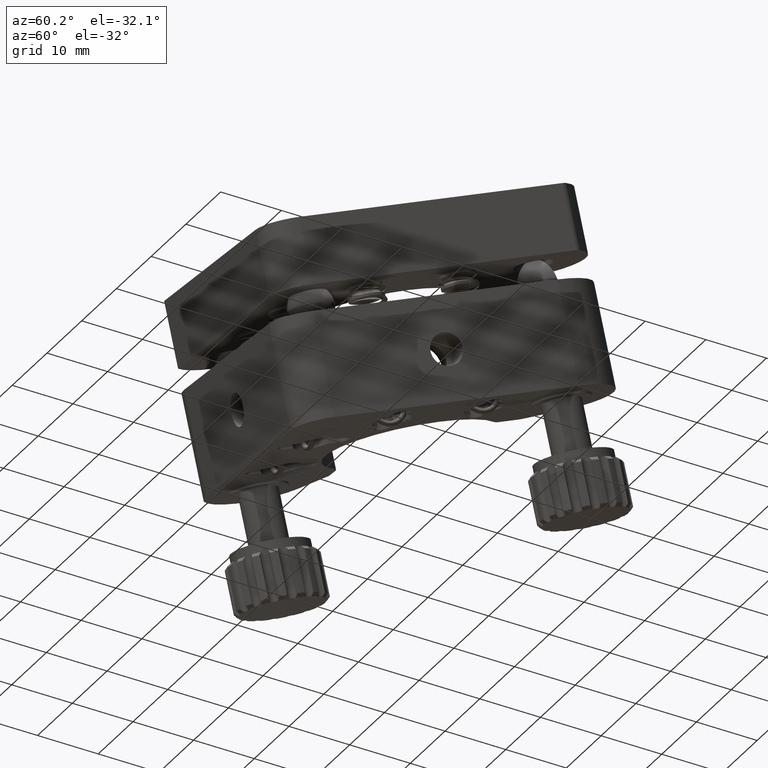
[diagram: clean part render]
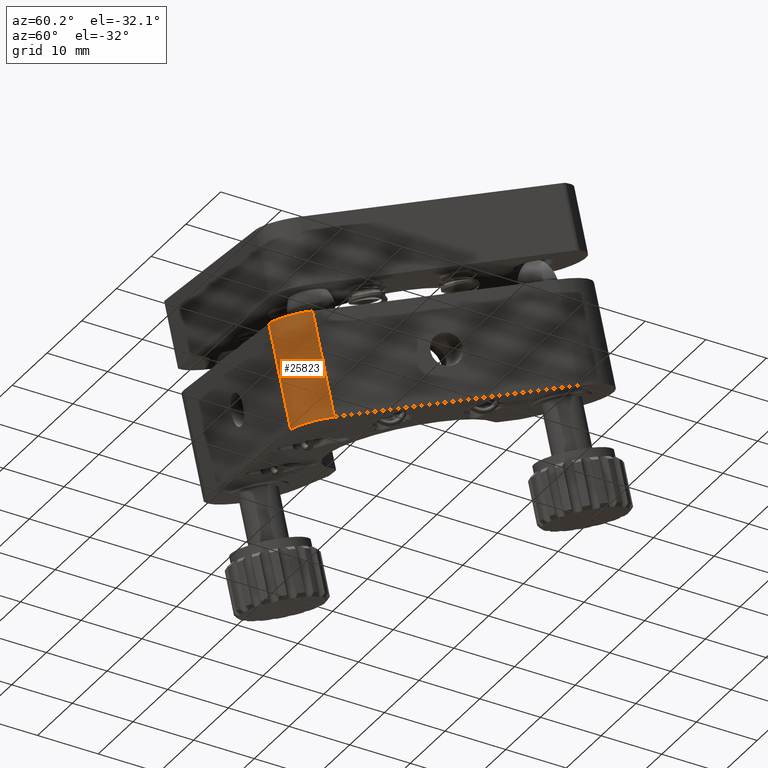
[diagram: same view with one face highlighted and labeled with its STEP entity id]
A machine part, auxiliary view. The second image highlights one B-rep face of the part: STEP entity #25823.
In plain terms, the highlighted cylindrical surface (edge-blend (fillet) strip) has radius 5 mm, axis along (-0.2028, 0.3443, -0.9167).
Its self-contained STEP definition (entity closure, byte-faithful):
#3476 = CIRCLE ( 'NONE', #6323, 4.999999999999994700 ) ;
#3584 = CARTESIAN_POINT ( 'NONE',  ( -572.1934965250317200, -1734.962992740449400, -525.1403516279418700 ) ) ;
#4198 = VERTEX_POINT ( 'NONE', #15161 ) ;
#5045 = FACE_OUTER_BOUND ( 'NONE', #28673, .T. ) ;
#6148 = VECTOR ( 'NONE', #23139, 1000.000000000000100 ) ;
#6323 = AXIS2_PLACEMENT_3D ( 'NONE', #10229, #33148, #13513 ) ;
#7798 = AXIS2_PLACEMENT_3D ( 'NONE', #25512, #25653, #25605 ) ;
#7990 = EDGE_CURVE ( 'NONE', #4198, #28126, #35665, .T. ) ;
#8677 = ORIENTED_EDGE ( 'NONE', *, *, #35024, .F. ) ;
#9697 = EDGE_CURVE ( 'NONE', #12268, #4198, #18629, .T. ) ;
#10229 = CARTESIAN_POINT ( 'NONE',  ( -576.9241430538644400, -1734.100689371768600, -523.7701632030872400 ) ) ;
#12268 = VERTEX_POINT ( 'NONE', #17279 ) ;
#13376 = CARTESIAN_POINT ( 'NONE',  ( -572.1934965250317200, -1734.962992740449400, -525.1403516279418700 ) ) ;
#13513 = DIRECTION ( 'NONE',  ( -0.9461293057665197700, 0.1724606737361968600, 0.2740376849709183500 ) ) ;
#14614 = VERTEX_POINT ( 'NONE', #3584 ) ;
#15161 = CARTESIAN_POINT ( 'NONE',  ( -581.3900654056033100, -1733.275956420254300, -539.7080223161214000 ) ) ;
#16868 = DIRECTION ( 'NONE',  ( -0.2027682202555435600, 0.3442554385256141900, -0.9167187365271513000 ) ) ;
#17279 = CARTESIAN_POINT ( 'NONE',  ( -578.1863275255657300, -1738.715192348958900, -525.2238662789924300 ) ) ;
#18317 = ORIENTED_EDGE ( 'NONE', *, *, #7990, .T. ) ;
#18629 = LINE ( 'NONE', #38273, #34996 ) ;
#23139 = DIRECTION ( 'NONE',  ( -0.2027682202555435600, 0.3442554385256141900, -0.9167187365271513000 ) ) ;
#23880 = ORIENTED_EDGE ( 'NONE', *, *, #35836, .F. ) ;
#24083 = AXIS2_PLACEMENT_3D ( 'NONE', #33562, #27280, #40418 ) ;
#25512 = CARTESIAN_POINT ( 'NONE',  ( -580.1278809339020200, -1728.661453443063700, -538.2543192402162000 ) ) ;
#25605 = DIRECTION ( 'NONE',  ( -0.9461293057665197700, 0.1724606737361968600, 0.2740376849709183500 ) ) ;
#25653 = DIRECTION ( 'NONE',  ( 0.2027682202555435900, -0.3442554385256142400, 0.9167187365271513000 ) ) ;
#25823 = ADVANCED_FACE ( 'NONE', ( #5045 ), #34757, .T. ) ;
#26180 = CARTESIAN_POINT ( 'NONE',  ( -575.3972344050694100, -1729.523756811744800, -539.6245076650707200 ) ) ;
#27280 = DIRECTION ( 'NONE',  ( -0.2027682202555435900, 0.3442554385256142400, -0.9167187365271513000 ) ) ;
#28126 = VERTEX_POINT ( 'NONE', #26180 ) ;
#28673 = EDGE_LOOP ( 'NONE', ( #18317, #8677, #23880, #36774 ) ) ;
#32282 = LINE ( 'NONE', #13376, #6148 ) ;
#33148 = DIRECTION ( 'NONE',  ( 0.2027682202555435900, -0.3442554385256142400, 0.9167187365271513000 ) ) ;
#33562 = CARTESIAN_POINT ( 'NONE',  ( -576.9241430538644400, -1734.100689371768600, -523.7701632030872400 ) ) ;
#34757 = CYLINDRICAL_SURFACE ( 'NONE', #24083, 4.999999999999994700 ) ;
#34996 = VECTOR ( 'NONE', #16868, 1000.000000000000100 ) ;
#35024 = EDGE_CURVE ( 'NONE', #14614, #28126, #32282, .T. ) ;
#35665 = CIRCLE ( 'NONE', #7798, 4.999999999999994700 ) ;
#35836 = EDGE_CURVE ( 'NONE', #12268, #14614, #3476, .T. ) ;
#36774 = ORIENTED_EDGE ( 'NONE', *, *, #9697, .T. ) ;
#38273 = CARTESIAN_POINT ( 'NONE',  ( -578.1863275255657300, -1738.715192348958900, -525.2238662789924300 ) ) ;
#40418 = DIRECTION ( 'NONE',  ( 0.9461293057665197700, -0.1724606737361968600, -0.2740376849709183500 ) ) ;